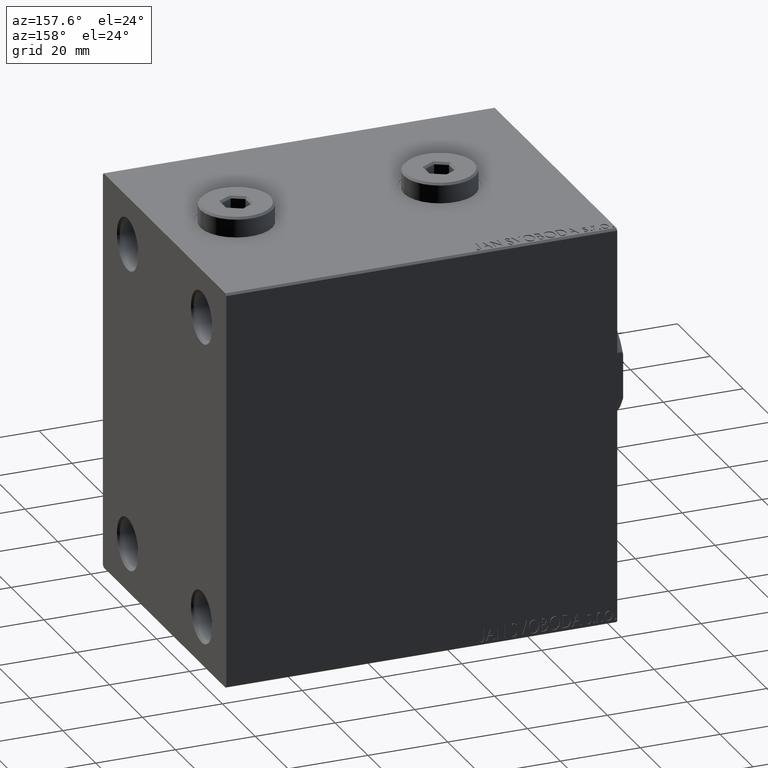
[diagram: clean part render]
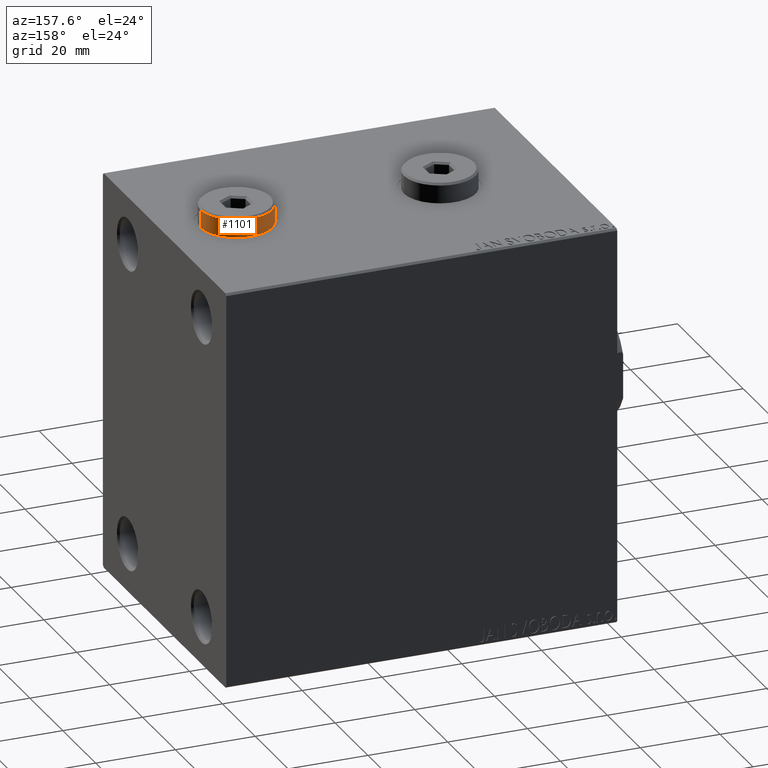
[diagram: same view with one face highlighted and labeled with its STEP entity id]
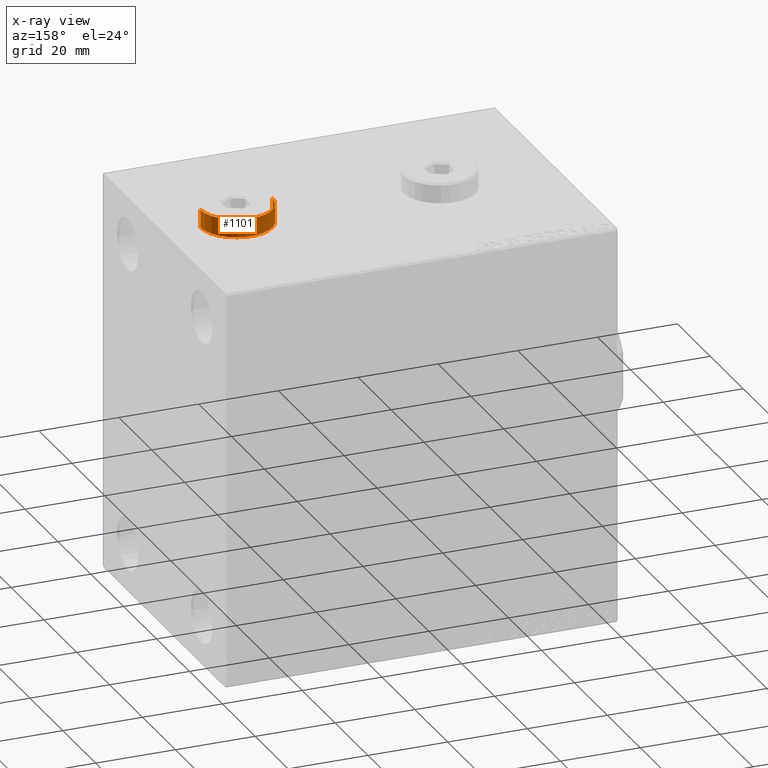
[diagram: x-ray of the same camera — body ghosted, the highlighted face saturated]
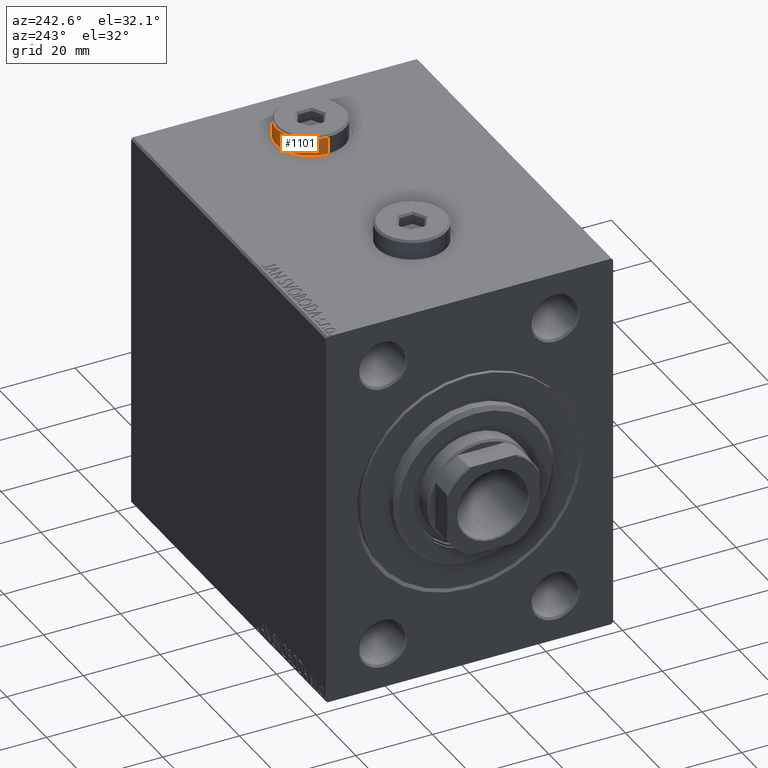
[diagram: same view with one face highlighted and labeled with its STEP entity id]
A machine part, auxiliary view. The second image highlights one B-rep face of the part: STEP entity #1101.
The next image is the same camera in x-ray: the body ghosted, the highlighted face saturated — about 0% of this face is hidden behind the body in this view.
A second angle (auxiliary view) of the same face is appended — the face is thin or edge-on in the first view.
In plain terms, the highlighted cylindrical surface (partial cylindrical patch) has radius 9 mm, axis along (-0, -0, -1).
Its self-contained STEP definition (entity closure, byte-faithful):
#755 = CARTESIAN_POINT ( 'NONE',  ( 9.000000000000001776, 1.102182119232617911E-15, 5.000000000000000000 ) ) ;
#894 = CARTESIAN_POINT ( 'NONE',  ( 0.000000000000000000, 0.000000000000000000, 5.000000000000000000 ) ) ;
#1000 = EDGE_LOOP ( 'NONE', ( #3128, #17310, #1707, #3742 ) ) ;
#1101 = ADVANCED_FACE ( 'NONE', ( #25163 ), #7156, .T. ) ;
#1212 = AXIS2_PLACEMENT_3D ( 'NONE', #3426, #3657, #4107 ) ;
#1504 = CARTESIAN_POINT ( 'NONE',  ( 0.000000000000000000, 0.000000000000000000, 0.000000000000000000 ) ) ;
#1707 = ORIENTED_EDGE ( 'NONE', *, *, #18222, .T. ) ;
#2495 = CIRCLE ( 'NONE', #43091, 9.000000000000001776 ) ;
#3128 = ORIENTED_EDGE ( 'NONE', *, *, #28823, .T. ) ;
#3426 = CARTESIAN_POINT ( 'NONE',  ( 0.000000000000000000, 0.000000000000000000, 4.500000000000006217 ) ) ;
#3657 = DIRECTION ( 'NONE',  ( 0.000000000000000000, 0.000000000000000000, -1.000000000000000000 ) ) ;
#3742 = ORIENTED_EDGE ( 'NONE', *, *, #29194, .F. ) ;
#4107 = DIRECTION ( 'NONE',  ( 1.000000000000000000, 0.000000000000000000, 0.000000000000000000 ) ) ;
#4392 = EDGE_CURVE ( 'NONE', #10646, #11463, #5069, .T. ) ;
#5041 = DIRECTION ( 'NONE',  ( -0.000000000000000000, -0.000000000000000000, -1.000000000000000000 ) ) ;
#5069 = LINE ( 'NONE', #755, #29314 ) ;
#5422 = DIRECTION ( 'NONE',  ( 0.000000000000000000, 0.000000000000000000, 1.000000000000000000 ) ) ;
#7156 = CYLINDRICAL_SURFACE ( 'NONE', #9278, 9.000000000000001776 ) ;
#9278 = AXIS2_PLACEMENT_3D ( 'NONE', #894, #26067, #36488 ) ;
#10646 = VERTEX_POINT ( 'NONE', #45597 ) ;
#11463 = VERTEX_POINT ( 'NONE', #18332 ) ;
#11777 = CARTESIAN_POINT ( 'NONE',  ( -9.000000000000001776, 0.000000000000000000, 4.500000000000006217 ) ) ;
#12797 = DIRECTION ( 'NONE',  ( 1.000000000000000000, 0.000000000000000000, 0.000000000000000000 ) ) ;
#16716 = CIRCLE ( 'NONE', #1212, 9.000000000000001776 ) ;
#17310 = ORIENTED_EDGE ( 'NONE', *, *, #4392, .T. ) ;
#18222 = EDGE_CURVE ( 'NONE', #11463, #27349, #2495, .T. ) ;
#18332 = CARTESIAN_POINT ( 'NONE',  ( 9.000000000000001776, 1.102182119232617911E-15, 0.000000000000000000 ) ) ;
#25163 = FACE_OUTER_BOUND ( 'NONE', #1000, .T. ) ;
#25551 = VECTOR ( 'NONE', #5041, 1000.000000000000000 ) ;
#26067 = DIRECTION ( 'NONE',  ( -0.000000000000000000, -0.000000000000000000, -1.000000000000000000 ) ) ;
#27349 = VERTEX_POINT ( 'NONE', #33320 ) ;
#28823 = EDGE_CURVE ( 'NONE', #31042, #10646, #16716, .T. ) ;
#29194 = EDGE_CURVE ( 'NONE', #31042, #27349, #37157, .T. ) ;
#29314 = VECTOR ( 'NONE', #44112, 1000.000000000000000 ) ;
#31042 = VERTEX_POINT ( 'NONE', #11777 ) ;
#33320 = CARTESIAN_POINT ( 'NONE',  ( -9.000000000000001776, 0.000000000000000000, 0.000000000000000000 ) ) ;
#36488 = DIRECTION ( 'NONE',  ( -1.000000000000000000, 0.000000000000000000, 0.000000000000000000 ) ) ;
#36713 = CARTESIAN_POINT ( 'NONE',  ( -9.000000000000001776, 0.000000000000000000, 5.000000000000000000 ) ) ;
#37157 = LINE ( 'NONE', #36713, #25551 ) ;
#43091 = AXIS2_PLACEMENT_3D ( 'NONE', #1504, #5422, #12797 ) ;
#44112 = DIRECTION ( 'NONE',  ( -0.000000000000000000, -0.000000000000000000, -1.000000000000000000 ) ) ;
#45597 = CARTESIAN_POINT ( 'NONE',  ( 9.000000000000001776, 1.102182119232617911E-15, 4.500000000000006217 ) ) ;